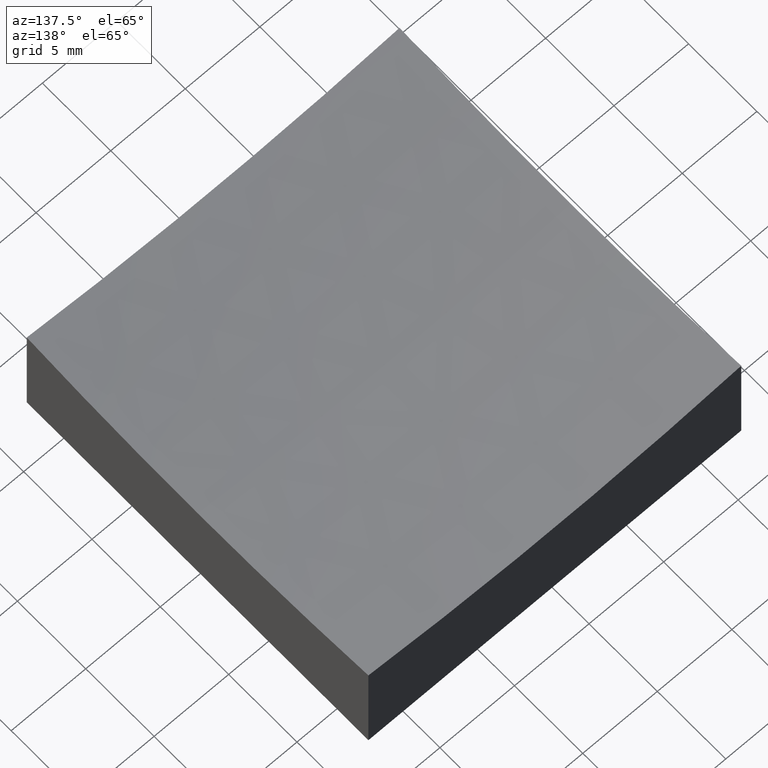
[diagram: clean part render]
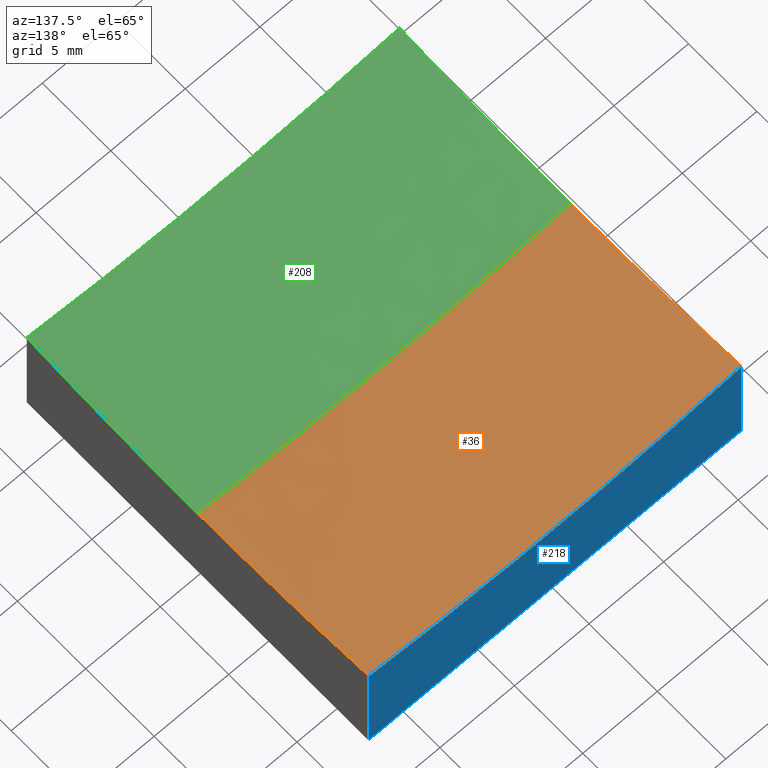
[diagram: same view with three faces highlighted in distinct colors, each labeled with its STEP entity id]
A machine part, auxiliary view with three faces highlighted in distinct colors.
Their STEP definitions:

[orange] entity #36 — the highlighted spherical surface has radius 100 mm.
#5 = ORIENTED_EDGE ( 'NONE', *, *, #157, .T. ) ;
#12 = VERTEX_POINT ( 'NONE', #100 ) ;
#29 = FACE_OUTER_BOUND ( 'NONE', #174, .T. ) ;
#30 = AXIS2_PLACEMENT_3D ( 'NONE', #89, #124, #142 ) ;
#32 = DIRECTION ( 'NONE',  ( 1.000000000000000000, 1.387778780781445676E-16, -0.0000000000000000000 ) ) ;
#35 = CIRCLE ( 'NONE', #194, 99.21567416492216296 ) ;
#36 = ADVANCED_FACE ( 'NONE', ( #29 ), #225, .F. ) ;
#46 = CIRCLE ( 'NONE', #30, 100.0000000000000142 ) ;
#55 = EDGE_CURVE ( 'NONE', #160, #61, #216, .T. ) ;
#56 = CARTESIAN_POINT ( 'NONE',  ( 12.50000000000000178, 1.734723475976805714E-15, 106.0000000000000142 ) ) ;
#61 = VERTEX_POINT ( 'NONE', #68 ) ;
#62 = AXIS2_PLACEMENT_3D ( 'NONE', #125, #212, #169 ) ;
#64 = VERTEX_POINT ( 'NONE', #139 ) ;
#68 = CARTESIAN_POINT ( 'NONE',  ( -12.49999999999999822, 1.530808498934191521E-15, 6.784325835077840594 ) ) ;
#71 = CIRCLE ( 'NONE', #62, 99.21567416492216296 ) ;
#72 = CARTESIAN_POINT ( 'NONE',  ( -12.49999999999999822, -1.734723475976808672E-15, 106.0000000000000142 ) ) ;
#73 = DIRECTION ( 'NONE',  ( 1.000000000000000000, 1.387778780781445676E-16, -0.0000000000000000000 ) ) ;
#74 = DIRECTION ( 'NONE',  ( -1.398749534750525041E-16, 1.000000000000000000, 0.0000000000000000000 ) ) ;
#80 = CARTESIAN_POINT ( 'NONE',  ( 1.298125607096194621E-14, 0.0000000000000000000, 106.0000000000000142 ) ) ;
#89 = CARTESIAN_POINT ( 'NONE',  ( 1.298125607096194621E-14, 0.0000000000000000000, 106.0000000000000142 ) ) ;
#99 = CARTESIAN_POINT ( 'NONE',  ( 1.298125607096194621E-14, 0.0000000000000000000, 106.0000000000000142 ) ) ;
#100 = CARTESIAN_POINT ( 'NONE',  ( -12.50000000000000000, 12.50000000000000000, 7.574901574852354713 ) ) ;
#117 = AXIS2_PLACEMENT_3D ( 'NONE', #99, #158, #222 ) ;
#119 = EDGE_CURVE ( 'NONE', #160, #64, #46, .T. ) ;
#122 = ORIENTED_EDGE ( 'NONE', *, *, #119, .T. ) ;
#124 = DIRECTION ( 'NONE',  ( 0.0000000000000000000, -1.000000000000000000, -0.0000000000000000000 ) ) ;
#125 = CARTESIAN_POINT ( 'NONE',  ( 1.298125607096194621E-14, 12.50000000000000000, 106.0000000000000142 ) ) ;
#128 = EDGE_CURVE ( 'NONE', #61, #12, #246, .T. ) ;
#129 = CARTESIAN_POINT ( 'NONE',  ( 12.50000000000000000, 12.50000000000000000, 7.574901574852354713 ) ) ;
#139 = CARTESIAN_POINT ( 'NONE',  ( 12.50000000000000355, 9.629649721936179265E-32, 6.784325835077840594 ) ) ;
#141 = AXIS2_PLACEMENT_3D ( 'NONE', #80, #182, #180 ) ;
#142 = DIRECTION ( 'NONE',  ( 0.0000000000000000000, 0.0000000000000000000, -1.000000000000000000 ) ) ;
#157 = EDGE_CURVE ( 'NONE', #201, #12, #71, .T. ) ;
#158 = DIRECTION ( 'NONE',  ( 1.224646799147353207E-16, 1.000000000000000000, -9.838134886674483045E-33 ) ) ;
#160 = VERTEX_POINT ( 'NONE', #170 ) ;
#169 = DIRECTION ( 'NONE',  ( 0.0000000000000000000, 0.0000000000000000000, 1.000000000000000000 ) ) ;
#170 = CARTESIAN_POINT ( 'NONE',  ( 1.107104328553358190E-14, 0.0000000000000000000, 5.999999999999991118 ) ) ;
#171 = AXIS2_PLACEMENT_3D ( 'NONE', #72, #32, #74 ) ;
#174 = EDGE_LOOP ( 'NONE', ( #176, #122, #200, #5, #220 ) ) ;
#176 = ORIENTED_EDGE ( 'NONE', *, *, #55, .F. ) ;
#180 = DIRECTION ( 'NONE',  ( 1.000000000000000000, 0.0000000000000000000, -1.387778780781445429E-16 ) ) ;
#182 = DIRECTION ( 'NONE',  ( 0.0000000000000000000, 1.000000000000000000, 0.0000000000000000000 ) ) ;
#194 = AXIS2_PLACEMENT_3D ( 'NONE', #56, #73, #211 ) ;
#200 = ORIENTED_EDGE ( 'NONE', *, *, #247, .T. ) ;
#201 = VERTEX_POINT ( 'NONE', #129 ) ;
#211 = DIRECTION ( 'NONE',  ( -1.398749534750525041E-16, 1.000000000000000000, 0.0000000000000000000 ) ) ;
#212 = DIRECTION ( 'NONE',  ( 0.0000000000000000000, 1.000000000000000000, 0.0000000000000000000 ) ) ;
#216 = CIRCLE ( 'NONE', #117, 100.0000000000000142 ) ;
#220 = ORIENTED_EDGE ( 'NONE', *, *, #128, .F. ) ;
#222 = DIRECTION ( 'NONE',  ( -1.000000000000000000, 1.224646799147353207E-16, 0.0000000000000000000 ) ) ;
#225 = SPHERICAL_SURFACE ( 'NONE', #141, 100.0000000000000142 ) ;
#246 = CIRCLE ( 'NONE', #171, 99.21567416492216296 ) ;
#247 = EDGE_CURVE ( 'NONE', #64, #201, #35, .T. ) ;

[blue] entity #218 — the highlighted planar face has unit normal (0, 1, 0).
#2 = EDGE_CURVE ( 'NONE', #195, #65, #44, .T. ) ;
#12 = VERTEX_POINT ( 'NONE', #100 ) ;
#38 = DIRECTION ( 'NONE',  ( -0.0000000000000000000, -0.0000000000000000000, -1.000000000000000000 ) ) ;
#44 = LINE ( 'NONE', #116, #204 ) ;
#52 = FACE_OUTER_BOUND ( 'NONE', #173, .T. ) ;
#59 = EDGE_CURVE ( 'NONE', #201, #65, #164, .T. ) ;
#62 = AXIS2_PLACEMENT_3D ( 'NONE', #125, #212, #169 ) ;
#65 = VERTEX_POINT ( 'NONE', #184 ) ;
#71 = CIRCLE ( 'NONE', #62, 99.21567416492216296 ) ;
#92 = CARTESIAN_POINT ( 'NONE',  ( -12.50000000000000000, 12.50000000000000000, 20.00000000000000000 ) ) ;
#100 = CARTESIAN_POINT ( 'NONE',  ( -12.50000000000000000, 12.50000000000000000, 7.574901574852354713 ) ) ;
#108 = AXIS2_PLACEMENT_3D ( 'NONE', #92, #233, #144 ) ;
#112 = LINE ( 'NONE', #193, #252 ) ;
#113 = VECTOR ( 'NONE', #245, 1000.000000000000000 ) ;
#116 = CARTESIAN_POINT ( 'NONE',  ( -12.50000000000000000, 12.50000000000000000, 0.0000000000000000000 ) ) ;
#125 = CARTESIAN_POINT ( 'NONE',  ( 1.298125607096194621E-14, 12.50000000000000000, 106.0000000000000142 ) ) ;
#129 = CARTESIAN_POINT ( 'NONE',  ( 12.50000000000000000, 12.50000000000000000, 7.574901574852354713 ) ) ;
#144 = DIRECTION ( 'NONE',  ( 0.0000000000000000000, -0.0000000000000000000, 1.000000000000000000 ) ) ;
#149 = ORIENTED_EDGE ( 'NONE', *, *, #2, .F. ) ;
#157 = EDGE_CURVE ( 'NONE', #201, #12, #71, .T. ) ;
#159 = EDGE_CURVE ( 'NONE', #12, #195, #112, .T. ) ;
#161 = DIRECTION ( 'NONE',  ( 1.000000000000000000, 0.0000000000000000000, 0.0000000000000000000 ) ) ;
#164 = LINE ( 'NONE', #250, #113 ) ;
#169 = DIRECTION ( 'NONE',  ( 0.0000000000000000000, 0.0000000000000000000, 1.000000000000000000 ) ) ;
#173 = EDGE_LOOP ( 'NONE', ( #196, #239, #149, #217 ) ) ;
#184 = CARTESIAN_POINT ( 'NONE',  ( 12.50000000000000000, 12.50000000000000000, 0.0000000000000000000 ) ) ;
#189 = CARTESIAN_POINT ( 'NONE',  ( -12.50000000000000000, 12.50000000000000000, 0.0000000000000000000 ) ) ;
#193 = CARTESIAN_POINT ( 'NONE',  ( -12.50000000000000000, 12.50000000000000000, 20.00000000000000000 ) ) ;
#195 = VERTEX_POINT ( 'NONE', #189 ) ;
#196 = ORIENTED_EDGE ( 'NONE', *, *, #157, .F. ) ;
#201 = VERTEX_POINT ( 'NONE', #129 ) ;
#204 = VECTOR ( 'NONE', #161, 1000.000000000000000 ) ;
#212 = DIRECTION ( 'NONE',  ( 0.0000000000000000000, 1.000000000000000000, 0.0000000000000000000 ) ) ;
#217 = ORIENTED_EDGE ( 'NONE', *, *, #159, .F. ) ;
#218 = ADVANCED_FACE ( 'NONE', ( #52 ), #230, .T. ) ;
#230 = PLANE ( 'NONE',  #108 ) ;
#233 = DIRECTION ( 'NONE',  ( 0.0000000000000000000, 1.000000000000000000, 0.0000000000000000000 ) ) ;
#239 = ORIENTED_EDGE ( 'NONE', *, *, #59, .T. ) ;
#245 = DIRECTION ( 'NONE',  ( -0.0000000000000000000, -0.0000000000000000000, -1.000000000000000000 ) ) ;
#250 = CARTESIAN_POINT ( 'NONE',  ( 12.50000000000000000, 12.50000000000000000, 20.00000000000000000 ) ) ;
#252 = VECTOR ( 'NONE', #38, 1000.000000000000000 ) ;

[green] entity #208 — the highlighted spherical surface has radius 100 mm.
#3 = VERTEX_POINT ( 'NONE', #179 ) ;
#14 = DIRECTION ( 'NONE',  ( -1.398749534750525041E-16, 1.000000000000000000, 0.0000000000000000000 ) ) ;
#15 = AXIS2_PLACEMENT_3D ( 'NONE', #226, #209, #14 ) ;
#20 = SPHERICAL_SURFACE ( 'NONE', #39, 100.0000000000000142 ) ;
#26 = VERTEX_POINT ( 'NONE', #237 ) ;
#30 = AXIS2_PLACEMENT_3D ( 'NONE', #89, #124, #142 ) ;
#37 = CARTESIAN_POINT ( 'NONE',  ( 1.298125607096194621E-14, 0.0000000000000000000, 106.0000000000000142 ) ) ;
#39 = AXIS2_PLACEMENT_3D ( 'NONE', #37, #69, #126 ) ;
#46 = CIRCLE ( 'NONE', #30, 100.0000000000000142 ) ;
#48 = ORIENTED_EDGE ( 'NONE', *, *, #55, .T. ) ;
#55 = EDGE_CURVE ( 'NONE', #160, #61, #216, .T. ) ;
#61 = VERTEX_POINT ( 'NONE', #68 ) ;
#64 = VERTEX_POINT ( 'NONE', #139 ) ;
#68 = CARTESIAN_POINT ( 'NONE',  ( -12.49999999999999822, 1.530808498934191521E-15, 6.784325835077840594 ) ) ;
#69 = DIRECTION ( 'NONE',  ( 0.0000000000000000000, 1.000000000000000000, 0.0000000000000000000 ) ) ;
#77 = CIRCLE ( 'NONE', #213, 99.21567416492216296 ) ;
#78 = DIRECTION ( 'NONE',  ( -1.398749534750525041E-16, 1.000000000000000000, 0.0000000000000000000 ) ) ;
#84 = ORIENTED_EDGE ( 'NONE', *, *, #119, .F. ) ;
#88 = EDGE_CURVE ( 'NONE', #3, #64, #146, .T. ) ;
#89 = CARTESIAN_POINT ( 'NONE',  ( 1.298125607096194621E-14, 0.0000000000000000000, 106.0000000000000142 ) ) ;
#93 = ORIENTED_EDGE ( 'NONE', *, *, #88, .T. ) ;
#99 = CARTESIAN_POINT ( 'NONE',  ( 1.298125607096194621E-14, 0.0000000000000000000, 106.0000000000000142 ) ) ;
#103 = DIRECTION ( 'NONE',  ( 0.0000000000000000000, 1.000000000000000000, 0.0000000000000000000 ) ) ;
#117 = AXIS2_PLACEMENT_3D ( 'NONE', #99, #158, #222 ) ;
#119 = EDGE_CURVE ( 'NONE', #160, #64, #46, .T. ) ;
#121 = EDGE_LOOP ( 'NONE', ( #84, #48, #240, #132, #93 ) ) ;
#124 = DIRECTION ( 'NONE',  ( 0.0000000000000000000, -1.000000000000000000, -0.0000000000000000000 ) ) ;
#126 = DIRECTION ( 'NONE',  ( 1.000000000000000000, 0.0000000000000000000, -1.387778780781445429E-16 ) ) ;
#132 = ORIENTED_EDGE ( 'NONE', *, *, #136, .F. ) ;
#136 = EDGE_CURVE ( 'NONE', #3, #26, #77, .T. ) ;
#139 = CARTESIAN_POINT ( 'NONE',  ( 12.50000000000000355, 9.629649721936179265E-32, 6.784325835077840594 ) ) ;
#142 = DIRECTION ( 'NONE',  ( 0.0000000000000000000, 0.0000000000000000000, -1.000000000000000000 ) ) ;
#146 = CIRCLE ( 'NONE', #15, 99.21567416492216296 ) ;
#147 = FACE_OUTER_BOUND ( 'NONE', #121, .T. ) ;
#158 = DIRECTION ( 'NONE',  ( 1.224646799147353207E-16, 1.000000000000000000, -9.838134886674483045E-33 ) ) ;
#160 = VERTEX_POINT ( 'NONE', #170 ) ;
#170 = CARTESIAN_POINT ( 'NONE',  ( 1.107104328553358190E-14, 0.0000000000000000000, 5.999999999999991118 ) ) ;
#179 = CARTESIAN_POINT ( 'NONE',  ( 12.50000000000000355, -12.50000000000000000, 7.574901574852354713 ) ) ;
#181 = AXIS2_PLACEMENT_3D ( 'NONE', #232, #192, #78 ) ;
#183 = EDGE_CURVE ( 'NONE', #26, #61, #231, .T. ) ;
#185 = DIRECTION ( 'NONE',  ( 0.0000000000000000000, 0.0000000000000000000, 1.000000000000000000 ) ) ;
#192 = DIRECTION ( 'NONE',  ( 1.000000000000000000, 1.387778780781445676E-16, -0.0000000000000000000 ) ) ;
#206 = CARTESIAN_POINT ( 'NONE',  ( 1.298125607096194621E-14, -12.50000000000000000, 106.0000000000000142 ) ) ;
#208 = ADVANCED_FACE ( 'NONE', ( #147 ), #20, .F. ) ;
#209 = DIRECTION ( 'NONE',  ( 1.000000000000000000, 1.387778780781445676E-16, -0.0000000000000000000 ) ) ;
#213 = AXIS2_PLACEMENT_3D ( 'NONE', #206, #103, #185 ) ;
#216 = CIRCLE ( 'NONE', #117, 100.0000000000000142 ) ;
#222 = DIRECTION ( 'NONE',  ( -1.000000000000000000, 1.224646799147353207E-16, 0.0000000000000000000 ) ) ;
#226 = CARTESIAN_POINT ( 'NONE',  ( 12.50000000000000178, 1.734723475976805714E-15, 106.0000000000000142 ) ) ;
#231 = CIRCLE ( 'NONE', #181, 99.21567416492216296 ) ;
#232 = CARTESIAN_POINT ( 'NONE',  ( -12.49999999999999822, -1.734723475976808672E-15, 106.0000000000000142 ) ) ;
#237 = CARTESIAN_POINT ( 'NONE',  ( -12.49999999999999645, -12.50000000000000000, 7.574901574852354713 ) ) ;
#240 = ORIENTED_EDGE ( 'NONE', *, *, #183, .F. ) ;